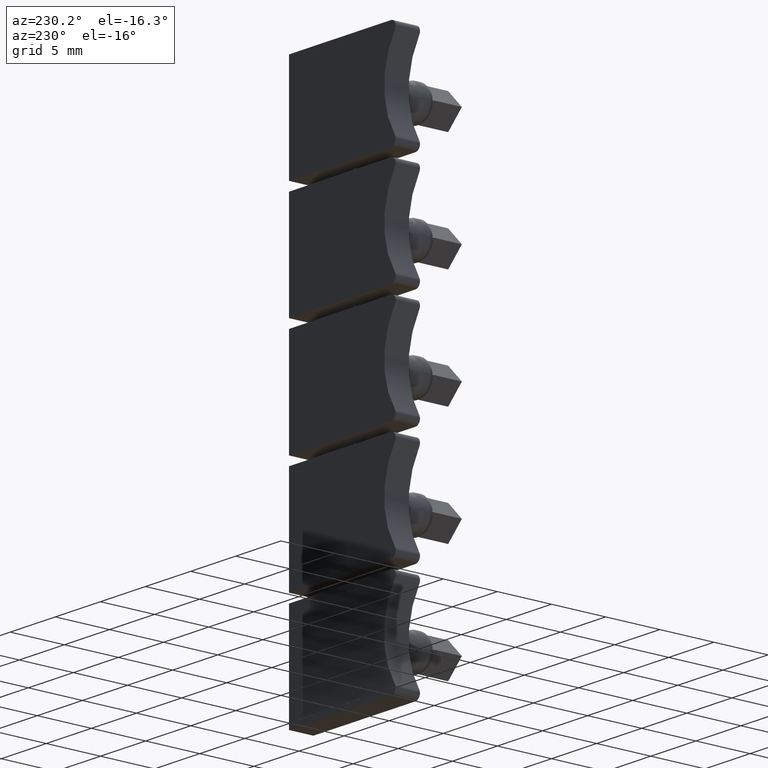
[diagram: clean part render]
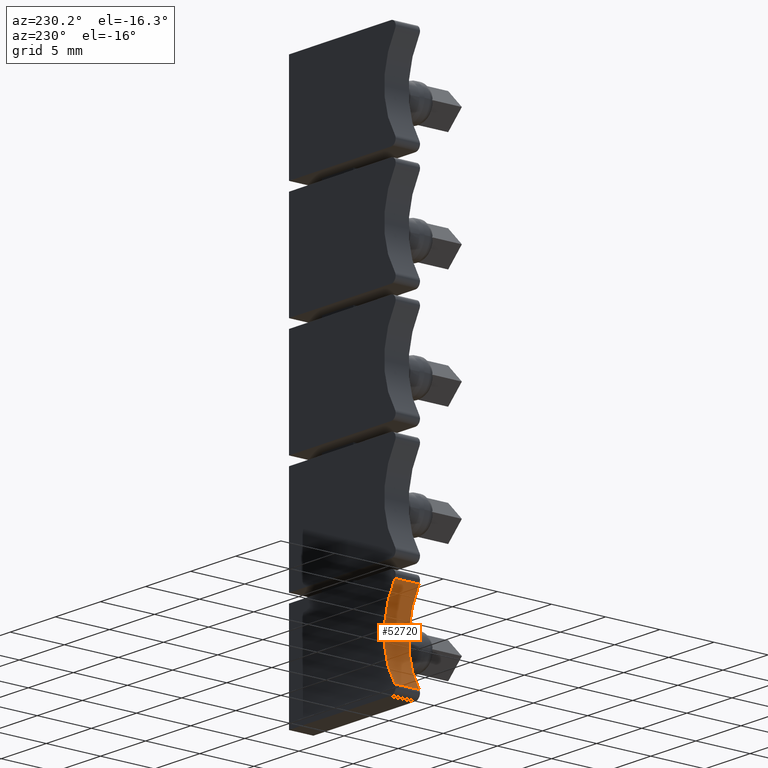
[diagram: same view with one face highlighted and labeled with its STEP entity id]
A machine part, auxiliary view. The second image highlights one B-rep face of the part: STEP entity #52720.
In plain terms, the highlighted cylindrical surface (partial cylindrical patch) has radius 7 mm, axis along (0, 1, -0).
Its self-contained STEP definition (entity closure, byte-faithful):
#52310=CARTESIAN_POINT('',(-24.7719648438414,35.7630743806125,15.15));
#52320=DIRECTION('',(4.37360856649983E-12,1.,0.));
#52330=DIRECTION('',(-1.,4.37360856649983E-12,0.));
#52340=AXIS2_PLACEMENT_3D('',#52310,#52320,#52330);
#52350=CYLINDRICAL_SURFACE('',#52340,6.99999999891299);
#52360=CARTESIAN_POINT('',(-18.9568131782551,35.7630743805871,
19.0466666640875));
#52370=DIRECTION('',(4.37360856649983E-12,1.,0.));
#52380=VECTOR('',#52370,1.);
#52390=LINE('',#52360,#52380);
#52400=CARTESIAN_POINT('',(-18.9568131782243,42.8120767804526,
19.0466666640875));
#52410=VERTEX_POINT('',#52400);
#52420=CARTESIAN_POINT('',(-18.9568131782144,45.0620767804526,
19.0466666640875));
#52430=VERTEX_POINT('',#52420);
#52440=EDGE_CURVE('',#52410,#52430,#52390,.T.);
#52450=ORIENTED_EDGE('',*,*,#52440,.T.);
#52460=CARTESIAN_POINT('',(-24.7719648438106,42.812076780478,15.15));
#52470=DIRECTION('',(4.37360856649983E-12,1.,0.));
#52480=DIRECTION('',(-1.,4.37360856649983E-12,0.));
#52490=AXIS2_PLACEMENT_3D('',#52460,#52470,#52480);
#52500=CIRCLE('',#52490,6.99999999891299);
#52510=CARTESIAN_POINT('',(-18.9568131816267,42.8120767804526,
11.2533333308349));
#52520=VERTEX_POINT('',#52510);
#52530=EDGE_CURVE('',#52410,#52520,#52500,.T.);
#52540=ORIENTED_EDGE('',*,*,#52530,.F.);
#52550=CARTESIAN_POINT('',(-18.9568131816576,35.7630743805871,
11.2533333308349));
#52560=DIRECTION('',(4.37360856649983E-12,1.,0.));
#52570=VECTOR('',#52560,1.);
#52580=LINE('',#52550,#52570);
#52590=CARTESIAN_POINT('',(-18.9568131816169,45.0620767804526,
11.2533333308349));
#52600=VERTEX_POINT('',#52590);
#52610=EDGE_CURVE('',#52520,#52600,#52580,.T.);
#52620=ORIENTED_EDGE('',*,*,#52610,.F.);
#52630=CARTESIAN_POINT('',(-24.7719648438007,45.062076780478,15.15));
#52640=DIRECTION('',(4.37360856649983E-12,1.,0.));
#52650=DIRECTION('',(-1.,4.37360856649983E-12,0.));
#52660=AXIS2_PLACEMENT_3D('',#52630,#52640,#52650);
#52670=CIRCLE('',#52660,6.99999999891299);
#52680=EDGE_CURVE('',#52430,#52600,#52670,.T.);
#52690=ORIENTED_EDGE('',*,*,#52680,.T.);
#52700=EDGE_LOOP('',(#52690,#52620,#52540,#52450));
#52710=FACE_OUTER_BOUND('',#52700,.T.);
#52720=ADVANCED_FACE('',(#52710),#52350,.F.);